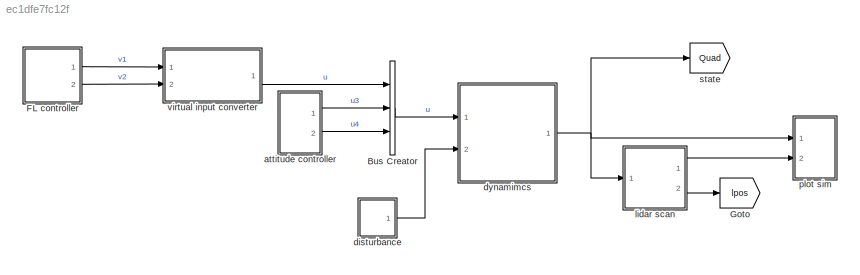
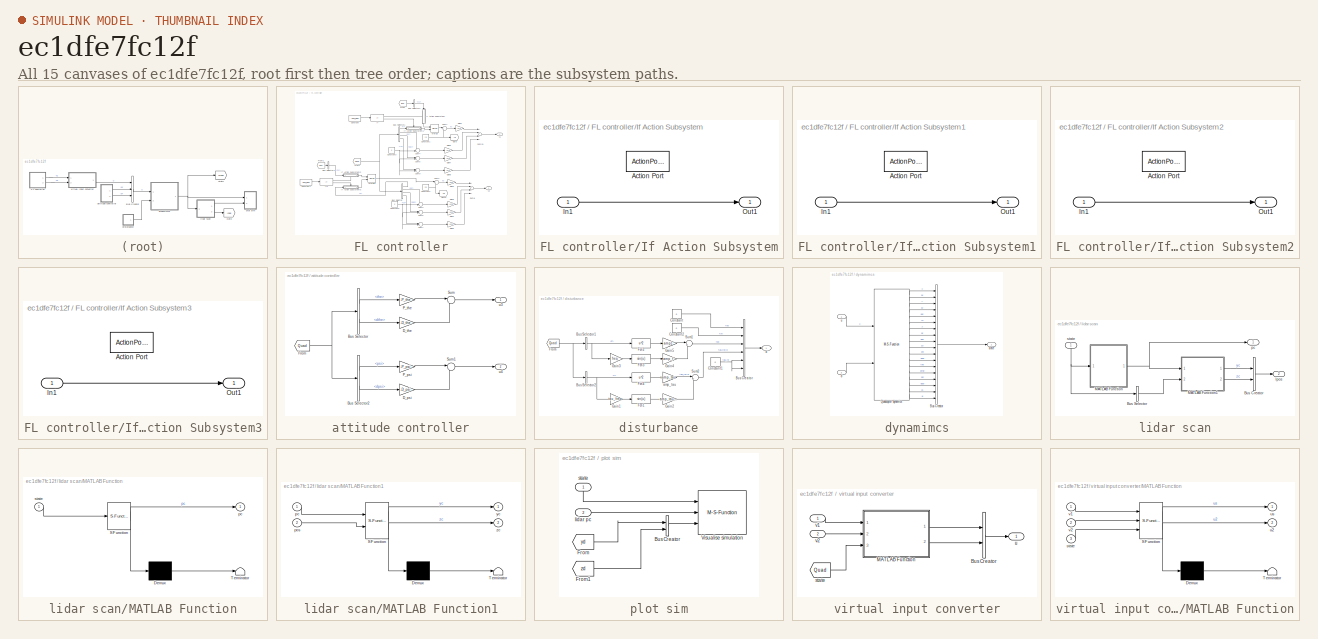
[diagram: thumbnail index - all 15 canvases of the model, root first then tree order]
MODEL slx_ec1dfe7fc12f
KIND model
CONFIG AbsTol = auto
CONFIG EnableMultiTasking = off
CONFIG FixedStep = 0.1
CONFIG MaxStep = auto
CONFIG MinStep = auto
CONFIG RelTol = 1e-3
CONFIG SampleTimeConstraint = Unconstrained
CONFIG Solver = FixedStepAuto
CONFIG SolverName = FixedStepAuto
CONFIG StartTime = 0.0
CONFIG StopTime = 100
WORKSPACE source: external: MAT-File  (data not in archive)
BLOCK [BusCreator] Bus Creator
  DisplayOption = bar
  InheritFromInputs = on
  Inputs = 3
  Ports = [3, 1]
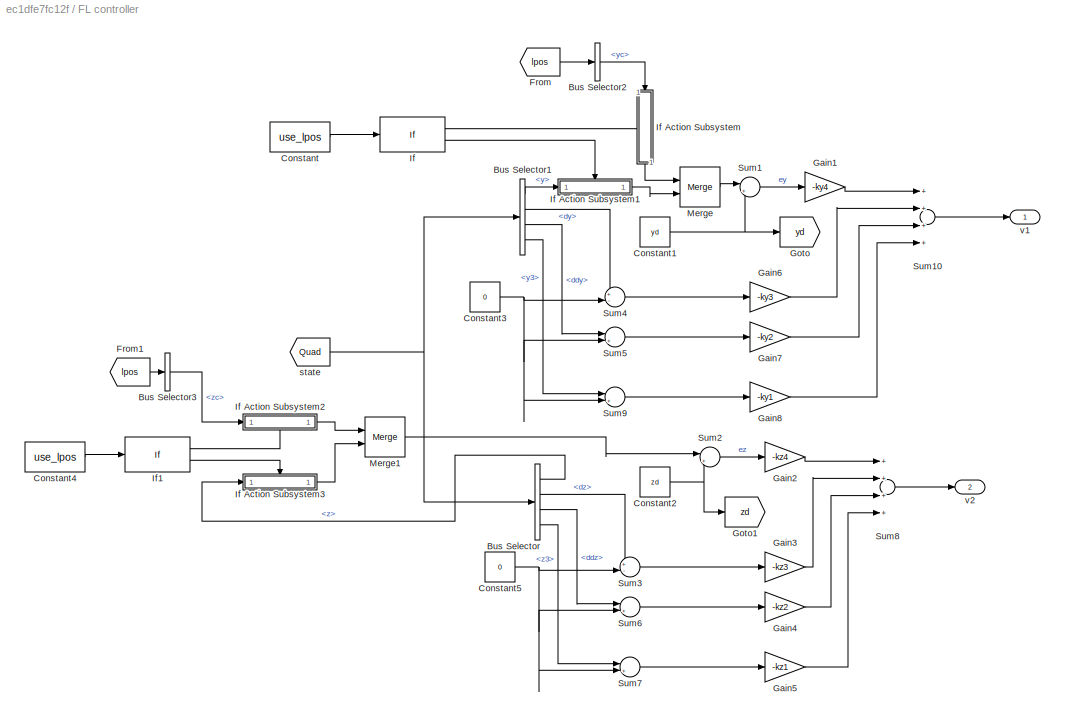
BLOCK [SubSystem] FL controller
  Ports = [0, 2]
  RequestExecContextInheritance = off
  Variant = off
BLOCK [BusSelector] FL controller/Bus Selector
  OutputAsBus = off
  OutputSignals = z,dz,ddz,z3
  Ports = [1, 4]
BLOCK [BusSelector] FL controller/Bus Selector1
  OutputAsBus = off
  OutputSignals = y,dy,ddy,y3
  Ports = [1, 4]
BLOCK [BusSelector] FL controller/Bus Selector2
  OutputAsBus = off
  OutputSignals = yc
  Ports = [1, 1]
BLOCK [BusSelector] FL controller/Bus Selector3
  OutputAsBus = off
  OutputSignals = zc
  Ports = [1, 1]
BLOCK [Constant] FL controller/Constant
  Value = use_lpos
BLOCK [Constant] FL controller/Constant1
  Value = yd
BLOCK [Constant] FL controller/Constant2
  Value = zd
BLOCK [Constant] FL controller/Constant3
  Value = 0
BLOCK [Constant] FL controller/Constant4
  Value = use_lpos
BLOCK [Constant] FL controller/Constant5
  Value = 0
BLOCK [From] FL controller/From
  GotoTag = lpos
  TagVisibility = global
BLOCK [From] FL controller/From1
  GotoTag = lpos
  TagVisibility = global
BLOCK [Gain] FL controller/Gain1
  Gain = -ky4
  OutDataTypeStr = Inherit: Inherit via internal rule
  ParamDataTypeStr = Inherit: Inherit via internal rule
  SaturateOnIntegerOverflow = off
BLOCK [Gain] FL controller/Gain2
  Gain = -kz4
  OutDataTypeStr = Inherit: Inherit via internal rule
  ParamDataTypeStr = Inherit: Inherit via internal rule
  SaturateOnIntegerOverflow = off
BLOCK [Gain] FL controller/Gain3
  Gain = -kz3
  OutDataTypeStr = Inherit: Inherit via internal rule
  ParamDataTypeStr = Inherit: Inherit via internal rule
  SaturateOnIntegerOverflow = off
BLOCK [Gain] FL controller/Gain4
  Gain = -kz2
  OutDataTypeStr = Inherit: Inherit via internal rule
  ParamDataTypeStr = Inherit: Inherit via internal rule
  SaturateOnIntegerOverflow = off
BLOCK [Gain] FL controller/Gain5
  Gain = -kz1
  OutDataTypeStr = Inherit: Inherit via internal rule
  ParamDataTypeStr = Inherit: Inherit via internal rule
  SaturateOnIntegerOverflow = off
BLOCK [Gain] FL controller/Gain6
  Gain = -ky3
  OutDataTypeStr = Inherit: Inherit via internal rule
  ParamDataTypeStr = Inherit: Inherit via internal rule
  SaturateOnIntegerOverflow = off
BLOCK [Gain] FL controller/Gain7
  Gain = -ky2
  OutDataTypeStr = Inherit: Inherit via internal rule
  ParamDataTypeStr = Inherit: Inherit via internal rule
  SaturateOnIntegerOverflow = off
BLOCK [Gain] FL controller/Gain8
  Gain = -ky1
  OutDataTypeStr = Inherit: Inherit via internal rule
  ParamDataTypeStr = Inherit: Inherit via internal rule
  SaturateOnIntegerOverflow = off
BLOCK [Goto] FL controller/Goto
  GotoTag = yd
  TagVisibility = global
BLOCK [Goto] FL controller/Goto1
  GotoTag = zd
  TagVisibility = global
BLOCK [If] FL controller/If
  Ports = [1, 2]
BLOCK [SubSystem] FL controller/If Action Subsystem
  Ports = [1, 1, 0, 0, 0, 0, 0, 1]
  RequestExecContextInheritance = off
  TreatAsAtomicUnit = on
  Variant = off
BLOCK [ActionPort] FL controller/If Action Subsystem/Action Port
  ActionType = then
BLOCK [Inport] FL controller/If Action Subsystem/In1
  IconDisplay = Port number
BLOCK [Outport] FL controller/If Action Subsystem/Out1
  IconDisplay = Port number
BLOCK [SubSystem] FL controller/If Action Subsystem1
  Ports = [1, 1, 0, 0, 0, 0, 0, 1]
  RequestExecContextInheritance = off
  TreatAsAtomicUnit = on
  Variant = off
BLOCK [ActionPort] FL controller/If Action Subsystem1/Action Port
  ActionType = else
BLOCK [Inport] FL controller/If Action Subsystem1/In1
  IconDisplay = Port number
BLOCK [Outport] FL controller/If Action Subsystem1/Out1
  IconDisplay = Port number
BLOCK [SubSystem] FL controller/If Action Subsystem2
  Ports = [1, 1, 0, 0, 0, 0, 0, 1]
  RequestExecContextInheritance = off
  TreatAsAtomicUnit = on
  Variant = off
BLOCK [ActionPort] FL controller/If Action Subsystem2/Action Port
  ActionType = then
BLOCK [Inport] FL controller/If Action Subsystem2/In1
  IconDisplay = Port number
BLOCK [Outport] FL controller/If Action Subsystem2/Out1
  IconDisplay = Port number
BLOCK [SubSystem] FL controller/If Action Subsystem3
  Ports = [1, 1, 0, 0, 0, 0, 0, 1]
  RequestExecContextInheritance = off
  TreatAsAtomicUnit = on
  Variant = off
BLOCK [ActionPort] FL controller/If Action Subsystem3/Action Port
  ActionType = else
BLOCK [Inport] FL controller/If Action Subsystem3/In1
  IconDisplay = Port number
BLOCK [Outport] FL controller/If Action Subsystem3/Out1
  IconDisplay = Port number
BLOCK [If] FL controller/If1
  Ports = [1, 2]
BLOCK [Merge] FL controller/Merge
  Ports = [2, 1]
BLOCK [Merge] FL controller/Merge1
  Ports = [2, 1]
BLOCK [Sum] FL controller/Sum1
  IconShape = round
  InputSameDT = off
  Inputs = |+-
  OutDataTypeStr = Inherit: Inherit via internal rule
  Ports = [2, 1]
  SaturateOnIntegerOverflow = off
BLOCK [Sum] FL controller/Sum10
  InputSameDT = off
  Inputs = ++++
  OutDataTypeStr = Inherit: Inherit via internal rule
  Ports = [4, 1]
  SaturateOnIntegerOverflow = off
BLOCK [Sum] FL controller/Sum2
  IconShape = round
  InputSameDT = off
  Inputs = |+-
  OutDataTypeStr = Inherit: Inherit via internal rule
  Ports = [2, 1]
  SaturateOnIntegerOverflow = off
BLOCK [Sum] FL controller/Sum3
  IconShape = round
  InputSameDT = off
  Inputs = +-|
  OutDataTypeStr = Inherit: Inherit via internal rule
  Ports = [2, 1]
  SaturateOnIntegerOverflow = off
BLOCK [Sum] FL controller/Sum4
  IconShape = round
  InputSameDT = off
  Inputs = +-|
  OutDataTypeStr = Inherit: Inherit via internal rule
  Ports = [2, 1]
  SaturateOnIntegerOverflow = off
BLOCK [Sum] FL controller/Sum5
  IconShape = round
  InputSameDT = off
  Inputs = |+-
  OutDataTypeStr = Inherit: Inherit via internal rule
  Ports = [2, 1]
  SaturateOnIntegerOverflow = off
BLOCK [Sum] FL controller/Sum6
  IconShape = round
  InputSameDT = off
  Inputs = |+-
  OutDataTypeStr = Inherit: Inherit via internal rule
  Ports = [2, 1]
  SaturateOnIntegerOverflow = off
BLOCK [Sum] FL controller/Sum7
  IconShape = round
  InputSameDT = off
  Inputs = |+-
  OutDataTypeStr = Inherit: Inherit via internal rule
  Ports = [2, 1]
  SaturateOnIntegerOverflow = off
BLOCK [Sum] FL controller/Sum8
  InputSameDT = off
  Inputs = ++++
  OutDataTypeStr = Inherit: Inherit via internal rule
  Ports = [4, 1]
  SaturateOnIntegerOverflow = off
BLOCK [Sum] FL controller/Sum9
  IconShape = round
  InputSameDT = off
  Inputs = |+-
  OutDataTypeStr = Inherit: Inherit via internal rule
  Ports = [2, 1]
  SaturateOnIntegerOverflow = off
BLOCK [From] FL controller/state
  GotoTag = Quad
  TagVisibility = global
BLOCK [Outport] FL controller/v1
  IconDisplay = Port number
BLOCK [Outport] FL controller/v2
  IconDisplay = Port number
  Port = 2
BLOCK [Goto] Goto
  GotoTag = lpos
  TagVisibility = global
BLOCK [SubSystem] attitude controller
  Ports = [0, 2]
  RequestExecContextInheritance = off
  Variant = off
BLOCK [BusSelector] attitude controller/Bus Selector
  OutputAsBus = off
  OutputSignals = the,dthe
  Ports = [1, 2]
BLOCK [BusSelector] attitude controller/Bus Selector2
  OutputAsBus = off
  OutputSignals = psi,dpsi
  Ports = [1, 2]
BLOCK [Gain] attitude controller/D_psi
  Gain = -D_psi
  OutDataTypeStr = Inherit: Inherit via internal rule
  ParamDataTypeStr = Inherit: Inherit via internal rule
  SaturateOnIntegerOverflow = off
BLOCK [Gain] attitude controller/D_the
  Gain = -D_the
  OutDataTypeStr = Inherit: Inherit via internal rule
  ParamDataTypeStr = Inherit: Inherit via internal rule
  SaturateOnIntegerOverflow = off
BLOCK [From] attitude controller/From
  GotoTag = Quad
  TagVisibility = global
BLOCK [Gain] attitude controller/P_psi
  Gain = -P_psi
  OutDataTypeStr = Inherit: Inherit via internal rule
  ParamDataTypeStr = Inherit: Inherit via internal rule
  SaturateOnIntegerOverflow = off
BLOCK [Gain] attitude controller/P_the
  Gain = -P_the
  OutDataTypeStr = Inherit: Inherit via internal rule
  ParamDataTypeStr = Inherit: Inherit via internal rule
  SaturateOnIntegerOverflow = off
BLOCK [Sum] attitude controller/Sum
  IconShape = round
  InputSameDT = off
  Inputs = |++
  OutDataTypeStr = Inherit: Inherit via internal rule
  Ports = [2, 1]
  SaturateOnIntegerOverflow = off
BLOCK [Sum] attitude controller/Sum1
  IconShape = round
  InputSameDT = off
  Inputs = |++
  OutDataTypeStr = Inherit: Inherit via internal rule
  Ports = [2, 1]
  SaturateOnIntegerOverflow = off
BLOCK [Outport] attitude controller/u3
  IconDisplay = Port number
BLOCK [Outport] attitude controller/u4 
  IconDisplay = Port number
  Port = 2
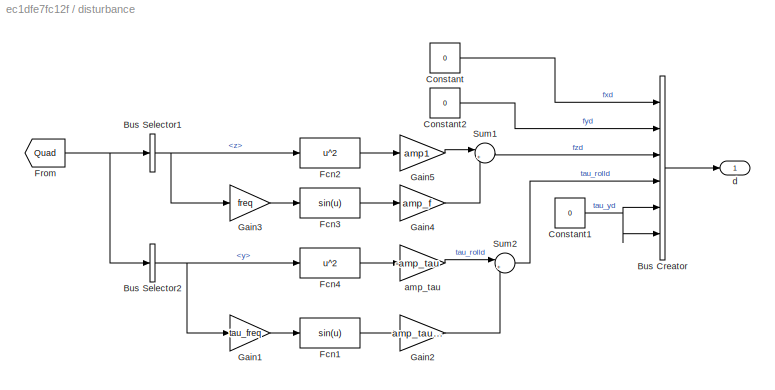
BLOCK [SubSystem] disturbance
  Ports = [0, 1]
  RequestExecContextInheritance = off
  Variant = off
BLOCK [BusCreator] disturbance/Bus Creator
  DisplayOption = bar
  InheritFromInputs = on
  Inputs = 6
  Ports = [6, 1]
BLOCK [BusSelector] disturbance/Bus Selector1
  OutputAsBus = off
  OutputSignals = z
  Ports = [1, 1]
BLOCK [BusSelector] disturbance/Bus Selector2
  OutputAsBus = off
  OutputSignals = y
  Ports = [1, 1]
BLOCK [Constant] disturbance/Constant
  Value = 0
BLOCK [Constant] disturbance/Constant1
  Value = 0
BLOCK [Constant] disturbance/Constant2
  Value = 0
BLOCK [Fcn] disturbance/Fcn1
  Expr = sin(u)
BLOCK [Fcn] disturbance/Fcn2
  Expr = u^2
BLOCK [Fcn] disturbance/Fcn3
  Expr = sin(u)
BLOCK [Fcn] disturbance/Fcn4
  Expr = u^2
BLOCK [From] disturbance/From
  GotoTag = Quad
  TagVisibility = global
BLOCK [Gain] disturbance/Gain1
  Gain = tau_freq
  OutDataTypeStr = Inherit: Inherit via internal rule
  ParamDataTypeStr = Inherit: Inherit via internal rule
  SaturateOnIntegerOverflow = off
BLOCK [Gain] disturbance/Gain2
  Gain = amp_tau_freq
  OutDataTypeStr = Inherit: Inherit via internal rule
  ParamDataTypeStr = Inherit: Inherit via internal rule
  SaturateOnIntegerOverflow = off
BLOCK [Gain] disturbance/Gain3
  Gain = freq
  OutDataTypeStr = Inherit: Inherit via internal rule
  ParamDataTypeStr = Inherit: Inherit via internal rule
  SaturateOnIntegerOverflow = off
BLOCK [Gain] disturbance/Gain4
  Gain = amp_f
  OutDataTypeStr = Inherit: Inherit via internal rule
  ParamDataTypeStr = Inherit: Inherit via internal rule
  SaturateOnIntegerOverflow = off
BLOCK [Gain] disturbance/Gain5
  Gain = amp1
  OutDataTypeStr = Inherit: Inherit via internal rule
  ParamDataTypeStr = Inherit: Inherit via internal rule
  SaturateOnIntegerOverflow = off
BLOCK [Sum] disturbance/Sum1
  IconShape = round
  InputSameDT = off
  Inputs = |++
  OutDataTypeStr = Inherit: Inherit via internal rule
  Ports = [2, 1]
  SaturateOnIntegerOverflow = off
BLOCK [Sum] disturbance/Sum2
  IconShape = round
  InputSameDT = off
  Inputs = |++
  OutDataTypeStr = Inherit: Inherit via internal rule
  Ports = [2, 1]
  SaturateOnIntegerOverflow = off
BLOCK [Gain] disturbance/amp_tau
  Gain = -amp_tau
  OutDataTypeStr = Inherit: Inherit via internal rule
  ParamDataTypeStr = Inherit: Inherit via internal rule
  SaturateOnIntegerOverflow = off
BLOCK [Outport] disturbance/d
  IconDisplay = Port number
BLOCK [SubSystem] dynamimcs
  Ports = [2, 1]
  RequestExecContextInheritance = off
  Variant = off
BLOCK [BusCreator] dynamimcs/Bus Creator
  DisplayOption = bar
  InheritFromInputs = on
  Inputs = 18
  Ports = [18, 1]
BLOCK [M-S-Function] dynamimcs/Quadcopter dynamics
  FunctionName = SF_quad_dynamics_FL
  Parameters = quad
  Ports = [2, 18]
BLOCK [Inport] dynamimcs/d
  IconDisplay = Port number
  Port = 2
BLOCK [Outport] dynamimcs/state
  IconDisplay = Port number
BLOCK [Inport] dynamimcs/u
  IconDisplay = Port number
BLOCK [SubSystem] lidar scan
  Ports = [1, 2]
  RequestExecContextInheritance = off
  Variant = off
BLOCK [BusCreator] lidar scan/Bus Creator
  DisplayOption = bar
  InheritFromInputs = on
  Inputs = 2
  Ports = [2, 1]
BLOCK [BusSelector] lidar scan/Bus Selector
  OutputAsBus = on
  OutputSignals = y,z
  Ports = [1, 1]
BLOCK [SubSystem] lidar scan/MATLAB Function
  ErrorFcn = Stateflow.Translate.translate
  PermitHierarchicalResolution = ExplicitOnly
  Ports = [1, 1]
  RequestExecContextInheritance = off
  SFBlockType = MATLAB Function
  TreatAsAtomicUnit = on
  Variant = off
BLOCK [Demux] lidar scan/MATLAB Function/ Demux 
  Outputs = 1
  Ports = [1, 1]
BLOCK [S-Function] lidar scan/MATLAB Function/ SFunction 
  EnableBusSupport = on
  FunctionName = sf_sfun
  PortCounts = [1 2]
  Ports = [1, 2]
  SFcnIsStateOwnerBlock = off
  SFunctionDeploymentMode = off
  Tag = Stateflow S-Function FL 2
BLOCK [Terminator] lidar scan/MATLAB Function/ Terminator 
BLOCK [Outport] lidar scan/MATLAB Function/pc
  IconDisplay = Port number
BLOCK [Inport] lidar scan/MATLAB Function/state
  IconDisplay = Port number
BLOCK [SubSystem] lidar scan/MATLAB Function1
  ErrorFcn = Stateflow.Translate.translate
  PermitHierarchicalResolution = ExplicitOnly
  Ports = [2, 2]
  RequestExecContextInheritance = off
  SFBlockType = MATLAB Function
  TreatAsAtomicUnit = on
  Variant = off
BLOCK [Demux] lidar scan/MATLAB Function1/ Demux 
  Outputs = 1
  Ports = [1, 1]
BLOCK [S-Function] lidar scan/MATLAB Function1/ SFunction 
  EnableBusSupport = on
  FunctionName = sf_sfun
  PortCounts = [2 3]
  Ports = [2, 3]
  SFcnIsStateOwnerBlock = off
  SFunctionDeploymentMode = off
  Tag = Stateflow S-Function FL 3
BLOCK [Terminator] lidar scan/MATLAB Function1/ Terminator 
BLOCK [Inport] lidar scan/MATLAB Function1/pc
  IconDisplay = Port number
BLOCK [Inport] lidar scan/MATLAB Function1/pos
  IconDisplay = Port number
  Port = 2
BLOCK [Outport] lidar scan/MATLAB Function1/yc
  IconDisplay = Port number
BLOCK [Outport] lidar scan/MATLAB Function1/zc
  IconDisplay = Port number
  Port = 2
BLOCK [Outport] lidar scan/lpos
  IconDisplay = Port number
  Port = 2
BLOCK [Outport] lidar scan/pc
  IconDisplay = Port number
BLOCK [Inport] lidar scan/state
  IconDisplay = Port number
BLOCK [SubSystem] plot sim
  Ports = [2]
  RequestExecContextInheritance = off
  Variant = off
BLOCK [BusCreator] plot sim/Bus Creator
  DisplayOption = bar
  InheritFromInputs = on
  Inputs = 2
  Ports = [2, 1]
BLOCK [From] plot sim/From
  GotoTag = yd
  TagVisibility = global
BLOCK [From] plot sim/From1
  GotoTag = zd
  TagVisibility = global
BLOCK [M-S-Function] plot sim/Visualise simulation 
  FunctionName = SF_plot_sim_FL
  Parameters = quad
  Ports = [3]
BLOCK [Inport] plot sim/lidar pc
  IconDisplay = Port number
  Port = 2
BLOCK [Inport] plot sim/state
  IconDisplay = Port number
BLOCK [Goto] state
  GotoTag = Quad
  TagVisibility = global
BLOCK [SubSystem] virtual input converter
  Ports = [2, 1]
  RequestExecContextInheritance = off
  Variant = off
BLOCK [BusCreator] virtual input converter/Bus Creator
  DisplayOption = bar
  InheritFromInputs = on
  Inputs = 2
  Ports = [2, 1]
BLOCK [SubSystem] virtual input converter/MATLAB Function
  ErrorFcn = Stateflow.Translate.translate
  PermitHierarchicalResolution = ExplicitOnly
  Ports = [3, 2]
  RequestExecContextInheritance = off
  SFBlockType = MATLAB Function
  TreatAsAtomicUnit = on
  Variant = off
BLOCK [Demux] virtual input converter/MATLAB Function/ Demux 
  Outputs = 1
  Ports = [1, 1]
BLOCK [S-Function] virtual input converter/MATLAB Function/ SFunction 
  EnableBusSupport = on
  FunctionName = sf_sfun
  PortCounts = [3 3]
  Ports = [3, 3]
  SFcnIsStateOwnerBlock = off
  SFunctionDeploymentMode = off
  Tag = Stateflow S-Function FL 1
BLOCK [Terminator] virtual input converter/MATLAB Function/ Terminator 
BLOCK [Inport] virtual input converter/MATLAB Function/state
  IconDisplay = Port number
  Port = 3
BLOCK [Outport] virtual input converter/MATLAB Function/u2
  IconDisplay = Port number
  Port = 2
BLOCK [Outport] virtual input converter/MATLAB Function/us
  IconDisplay = Port number
BLOCK [Inport] virtual input converter/MATLAB Function/v1
  IconDisplay = Port number
BLOCK [Inport] virtual input converter/MATLAB Function/v2
  IconDisplay = Port number
  Port = 2
BLOCK [From] virtual input converter/state
  GotoTag = Quad
  IconDisplay = Tag and signal name
  TagVisibility = global
BLOCK [Outport] virtual input converter/u
  IconDisplay = Port number
BLOCK [Inport] virtual input converter/v1
  IconDisplay = Port number
BLOCK [Inport] virtual input converter/v2
  IconDisplay = Port number
  Port = 2
LINE Bus Creator:1 -> dynamimcs:1
LINE FL controller/Bus Selector1:1 -> FL controller/If Action Subsystem1:1
LINE FL controller/Bus Selector1:2 -> FL controller/Sum4:1
LINE FL controller/Bus Selector1:3 -> FL controller/Sum5:1
LINE FL controller/Bus Selector1:4 -> FL controller/Sum9:1
LINE FL controller/Bus Selector2:1 -> FL controller/If Action Subsystem:1
LINE FL controller/Bus Selector3:1 -> FL controller/If Action Subsystem2:1
LINE FL controller/Bus Selector:1 -> FL controller/If Action Subsystem3:1
LINE FL controller/Bus Selector:2 -> FL controller/Sum3:1
LINE FL controller/Bus Selector:3 -> FL controller/Sum6:1
LINE FL controller/Bus Selector:4 -> FL controller/Sum7:1
NET FL controller/Constant1:1 -> FL controller/Goto:1, FL controller/Sum1:2
NET FL controller/Constant2:1 -> FL controller/Goto1:1, FL controller/Sum2:2
NET FL controller/Constant3:1 -> FL controller/Sum4:2, FL controller/Sum5:2, FL controller/Sum9:2
LINE FL controller/Constant4:1 -> FL controller/If1:1
NET FL controller/Constant5:1 -> FL controller/Sum3:2, FL controller/Sum6:2, FL controller/Sum7:2
LINE FL controller/Constant:1 -> FL controller/If:1
LINE FL controller/From1:1 -> FL controller/Bus Selector3:1
LINE FL controller/From:1 -> FL controller/Bus Selector2:1
LINE FL controller/Gain1:1 -> FL controller/Sum10:1
LINE FL controller/Gain2:1 -> FL controller/Sum8:1
LINE FL controller/Gain3:1 -> FL controller/Sum8:2
LINE FL controller/Gain4:1 -> FL controller/Sum8:3
LINE FL controller/Gain5:1 -> FL controller/Sum8:4
LINE FL controller/Gain6:1 -> FL controller/Sum10:2
LINE FL controller/Gain7:1 -> FL controller/Sum10:3
LINE FL controller/Gain8:1 -> FL controller/Sum10:4
LINE FL controller/If Action Subsystem/In1:1 -> FL controller/If Action Subsystem/Out1:1
LINE FL controller/If Action Subsystem1/In1:1 -> FL controller/If Action Subsystem1/Out1:1
LINE FL controller/If Action Subsystem1:1 -> FL controller/Merge:2
LINE FL controller/If Action Subsystem2/In1:1 -> FL controller/If Action Subsystem2/Out1:1
LINE FL controller/If Action Subsystem2:1 -> FL controller/Merge1:1
LINE FL controller/If Action Subsystem3/In1:1 -> FL controller/If Action Subsystem3/Out1:1
LINE FL controller/If Action Subsystem3:1 -> FL controller/Merge1:2
LINE FL controller/If Action Subsystem:1 -> FL controller/Merge:1
LINE FL controller/If1:1 -> FL controller/If Action Subsystem2:ifaction
LINE FL controller/If1:2 -> FL controller/If Action Subsystem3:ifaction
LINE FL controller/If:1 -> FL controller/If Action Subsystem:ifaction
LINE FL controller/If:2 -> FL controller/If Action Subsystem1:ifaction
LINE FL controller/Merge1:1 -> FL controller/Sum2:1
LINE FL controller/Merge:1 -> FL controller/Sum1:1
LINE FL controller/Sum10:1 -> FL controller/v1:1
LINE FL controller/Sum1:1 -> FL controller/Gain1:1
LINE FL controller/Sum2:1 -> FL controller/Gain2:1
LINE FL controller/Sum3:1 -> FL controller/Gain3:1
LINE FL controller/Sum4:1 -> FL controller/Gain6:1
LINE FL controller/Sum5:1 -> FL controller/Gain7:1
LINE FL controller/Sum6:1 -> FL controller/Gain4:1
LINE FL controller/Sum7:1 -> FL controller/Gain5:1
LINE FL controller/Sum8:1 -> FL controller/v2:1
LINE FL controller/Sum9:1 -> FL controller/Gain8:1
NET FL controller/state:1 -> FL controller/Bus Selector1:1, FL controller/Bus Selector:1
LINE FL controller:1 -> virtual input converter:1
LINE FL controller:2 -> virtual input converter:2
LINE attitude controller/Bus Selector2:1 -> attitude controller/P_psi:1
LINE attitude controller/Bus Selector2:2 -> attitude controller/D_psi:1
LINE attitude controller/Bus Selector:1 -> attitude controller/P_the:1
LINE attitude controller/Bus Selector:2 -> attitude controller/D_the:1
LINE attitude controller/D_psi:1 -> attitude controller/Sum1:2
LINE attitude controller/D_the:1 -> attitude controller/Sum:2
NET attitude controller/From:1 -> attitude controller/Bus Selector2:1, attitude controller/Bus Selector:1
LINE attitude controller/P_psi:1 -> attitude controller/Sum1:1
LINE attitude controller/P_the:1 -> attitude controller/Sum:1
LINE attitude controller/Sum1:1 -> attitude controller/u4 :1
LINE attitude controller/Sum:1 -> attitude controller/u3:1
LINE attitude controller:1 -> Bus Creator:2
LINE attitude controller:2 -> Bus Creator:3
LINE disturbance/Bus Creator:1 -> disturbance/d:1
NET disturbance/Bus Selector1:1 -> disturbance/Fcn2:1, disturbance/Gain3:1
NET disturbance/Bus Selector2:1 -> disturbance/Fcn4:1, disturbance/Gain1:1
NET disturbance/Constant1:1 -> disturbance/Bus Creator:5, disturbance/Bus Creator:6
LINE disturbance/Constant2:1 -> disturbance/Bus Creator:2
LINE disturbance/Constant:1 -> disturbance/Bus Creator:1
LINE disturbance/Fcn1:1 -> disturbance/Gain2:1
LINE disturbance/Fcn2:1 -> disturbance/Gain5:1
LINE disturbance/Fcn3:1 -> disturbance/Gain4:1
LINE disturbance/Fcn4:1 -> disturbance/amp_tau:1
NET disturbance/From:1 -> disturbance/Bus Selector1:1, disturbance/Bus Selector2:1
LINE disturbance/Gain1:1 -> disturbance/Fcn1:1
LINE disturbance/Gain2:1 -> disturbance/Sum2:2
LINE disturbance/Gain3:1 -> disturbance/Fcn3:1
LINE disturbance/Gain4:1 -> disturbance/Sum1:2
LINE disturbance/Gain5:1 -> disturbance/Sum1:1
LINE disturbance/Sum1:1 -> disturbance/Bus Creator:3
LINE disturbance/Sum2:1 -> disturbance/Bus Creator:4
LINE disturbance/amp_tau:1 -> disturbance/Sum2:1
LINE disturbance:1 -> dynamimcs:2
LINE dynamimcs/Bus Creator:1 -> dynamimcs/state:1
LINE dynamimcs/Quadcopter dynamics:1 -> dynamimcs/Bus Creator:1
LINE dynamimcs/Quadcopter dynamics:10 -> dynamimcs/Bus Creator:10
LINE dynamimcs/Quadcopter dynamics:11 -> dynamimcs/Bus Creator:11
LINE dynamimcs/Quadcopter dynamics:12 -> dynamimcs/Bus Creator:12
LINE dynamimcs/Quadcopter dynamics:13 -> dynamimcs/Bus Creator:13
LINE dynamimcs/Quadcopter dynamics:14 -> dynamimcs/Bus Creator:14
LINE dynamimcs/Quadcopter dynamics:15 -> dynamimcs/Bus Creator:15
LINE dynamimcs/Quadcopter dynamics:16 -> dynamimcs/Bus Creator:16
LINE dynamimcs/Quadcopter dynamics:17 -> dynamimcs/Bus Creator:17
LINE dynamimcs/Quadcopter dynamics:18 -> dynamimcs/Bus Creator:18
LINE dynamimcs/Quadcopter dynamics:2 -> dynamimcs/Bus Creator:2
LINE dynamimcs/Quadcopter dynamics:3 -> dynamimcs/Bus Creator:3
LINE dynamimcs/Quadcopter dynamics:4 -> dynamimcs/Bus Creator:4
LINE dynamimcs/Quadcopter dynamics:5 -> dynamimcs/Bus Creator:5
LINE dynamimcs/Quadcopter dynamics:6 -> dynamimcs/Bus Creator:6
LINE dynamimcs/Quadcopter dynamics:7 -> dynamimcs/Bus Creator:7
LINE dynamimcs/Quadcopter dynamics:8 -> dynamimcs/Bus Creator:8
LINE dynamimcs/Quadcopter dynamics:9 -> dynamimcs/Bus Creator:9
LINE dynamimcs/d:1 -> dynamimcs/Quadcopter dynamics:2
LINE dynamimcs/u:1 -> dynamimcs/Quadcopter dynamics:1
NET dynamimcs:1 -> lidar scan:1, plot sim:1, state:1
LINE lidar scan/Bus Creator:1 -> lidar scan/lpos:1
LINE lidar scan/Bus Selector:1 -> lidar scan/MATLAB Function1:2
LINE lidar scan/MATLAB Function1:1 -> lidar scan/Bus Creator:1
LINE lidar scan/MATLAB Function1:2 -> lidar scan/Bus Creator:2
NET lidar scan/MATLAB Function:1 -> lidar scan/MATLAB Function1:1, lidar scan/pc:1
NET lidar scan/state:1 -> lidar scan/Bus Selector:1, lidar scan/MATLAB Function:1
LINE lidar scan:1 -> plot sim:2
LINE lidar scan:2 -> Goto:1
LINE plot sim/Bus Creator:1 -> plot sim/Visualise simulation :3
LINE plot sim/From1:1 -> plot sim/Bus Creator:2
LINE plot sim/From:1 -> plot sim/Bus Creator:1
LINE plot sim/lidar pc:1 -> plot sim/Visualise simulation :2
LINE plot sim/state:1 -> plot sim/Visualise simulation :1
LINE virtual input converter/Bus Creator:1 -> virtual input converter/u:1
LINE virtual input converter/MATLAB Function:1 -> virtual input converter/Bus Creator:1
LINE virtual input converter/MATLAB Function:2 -> virtual input converter/Bus Creator:2
LINE virtual input converter/state:1 -> virtual input converter/MATLAB Function:3
LINE virtual input converter/v1:1 -> virtual input converter/MATLAB Function:1
LINE virtual input converter/v2:1 -> virtual input converter/MATLAB Function:2
LINE virtual input converter:1 -> Bus Creator:1
note: NET lines group one-source signal fan-out (src -> all destinations, sorted); 1:1 wires keep LINE
CHART virtual input converter/MATLAB Function states=1 transitions=1
  STATE_LABEL 'eML_blk_kernel()'
  STATE_LABEL 'SCRIPT:\nfunction [us, u2] = v2u(v1, v2, state)\n\nphi = state(11);\ndphi = state(12);\nu1 = state(17);\nuj = state(18);\n\nl = 1;\n\nus = u1 * dphi^2 -sin(phi)*v1 + cos(phi)*v2;\n\nu2 = (-2*dphi*uj - cos(phi)*v1 - sin(phi)*v2)/(l*u1)\n\n'
CHART lidar scan/MATLAB Function states=1 transitions=1
  STATE_LABEL 'eML_blk_kernel()'
  STATE_LABEL 'SCRIPT:\n%% need another and condition inside wall check\n\n\nfunction pc = lidar_scan_gen(state)\n\n%% init\ntunnel_r = 1.5;\ntunnel_l = 6; % tunnel length;\n\na = -135:0.25:135; % lidar FOV is 270 deg\n\na = a .* pi/180;\n\npc = zeros(length(a)+5, 3);\ntemp = zeros(length(a), 3);\n\nz_ceiling = 2 * tunnel_r;\nz_ground = 0;\n\nwall_left = -tunnel_r;\nwall_right = tunnel_r;\n\npos_x = state(1);\npos_y = state(3);\npos_z =...<+1358ch>'
CHART lidar scan/MATLAB Function1 states=1 transitions=1
  STATE_LABEL 'eML_blk_kernel()'
  STATE_LABEL 'SCRIPT:\nfunction [yc, zc] = get_centroid(pc, pos)\n\n% init\npc = pc(6:end, :);\nA = 0;\ncy = 0;\ncz = 0;\n\npy = pos(1);\npz = pos(2);\n\n\n\ny = pc(:,2) + py;\nz = pc(:,3) + pz -1.5;\n\nfor n = 1:length(pc)-1\n\n    A = A + (y(n) * z(n+1)) - (y(n+1) * z(n));\n\n    cy = cy + (y(n) + y(n+1)) * (y(n) * z(n+1) - y(n+1) * z(n));\n    cz = cz + (z(n) + z(n+1)) * (y(n) * z(n+1) - y(n+1) * z(n));\n  \nend\n\nA = A/2;\n\n\npos_loc...<+112ch>'
